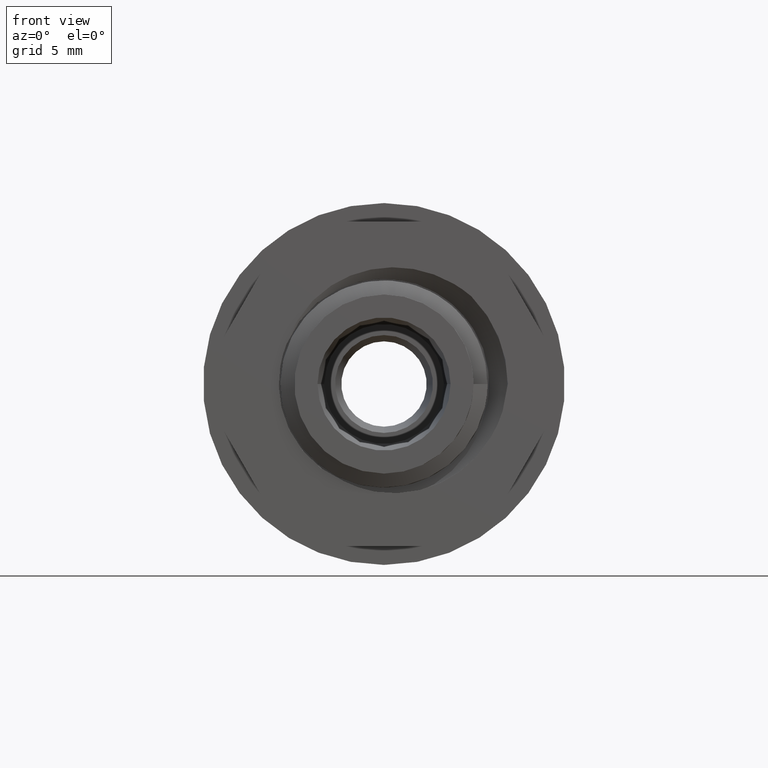
[diagram: clean part render]
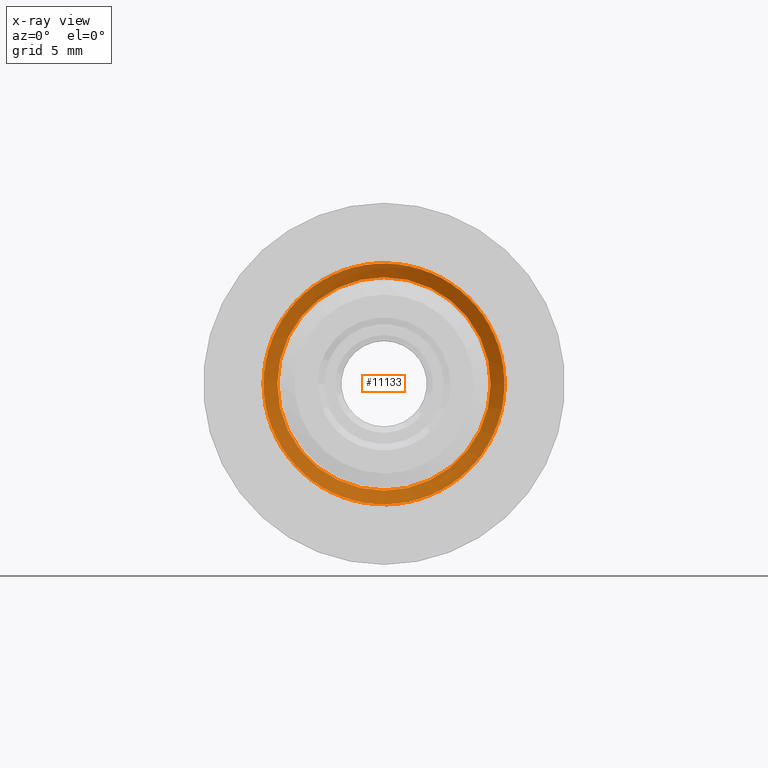
[diagram: x-ray — body ghosted, one internal face saturated and labeled with its STEP entity id]
A machine part, front view, then the same camera in x-ray: the body is ghosted and one INTERNAL B-rep face — a face not visible from any outside direction — is saturated and labeled: STEP entity #11133.
In plain terms, the highlighted face is a freeform B-spline surface patch.
Its self-contained STEP definition (entity closure, byte-faithful):
#928 =( BOUNDED_CURVE ( )  B_SPLINE_CURVE ( 2, ( #4069, #4071, #4102, #4090, #4085 ),
 .UNSPECIFIED., .F., .T. ) 
 B_SPLINE_CURVE_WITH_KNOTS ( ( 3, 2, 3 ),
 ( 0.2054665194121085800, 0.2103523222817962600, 0.2117462345406031800 ),
 .UNSPECIFIED. ) 
 CURVE ( )  GEOMETRIC_REPRESENTATION_ITEM ( )  RATIONAL_B_SPLINE_CURVE ( ( 0.9999999999999926700, 0.9238795325112940700, 1.000000000000000000, 0.9782829443576357400, 0.9689575757695707600 ) ) 
 REPRESENTATION_ITEM ( '' )  );
#1036 = CARTESIAN_POINT ( 'NONE',  ( 5.200334842912268900E-012, 9.720906259383316000, -6.250000000000000000 ) ) ;
#1040 = CARTESIAN_POINT ( 'NONE',  ( 2.588834764831757800, 9.064656259383506100, 6.250000000000071900 ) ) ;
#1049 = CARTESIAN_POINT ( 'NONE',  ( 6.249999999999985800, 9.252156259383507800, 2.588834764831843500 ) ) ;
#1051 = CARTESIAN_POINT ( 'NONE',  ( -2.039346997220663400E-013, 8.970906259383493600, 6.250000000000000000 ) ) ;
#1058 = CARTESIAN_POINT ( 'NONE',  ( 6.249999999999989300, 9.345906259383507800, 8.001089661568162100E-029 ) ) ;
#1062 = CARTESIAN_POINT ( 'NONE',  ( 2.588834764838638500, 9.627156259383156100, -6.249999999993188600 ) ) ;
#1067 = CARTESIAN_POINT ( 'NONE',  ( 4.419417382415916000, 9.533406259383513200, -4.419417382415915100 ) ) ;
#1072 = CARTESIAN_POINT ( 'NONE',  ( 6.249999999999991100, 9.439656259383513200, -2.588834764831839500 ) ) ;
#1078 = CARTESIAN_POINT ( 'NONE',  ( 4.419417382415912400, 9.158406259383509600, 4.419417382415915100 ) ) ;
#1194 = CARTESIAN_POINT ( 'NONE',  ( -2.268773534408079100E-012, 8.220906259383580700, -6.250000000000000000 ) ) ;
#1196 = CARTESIAN_POINT ( 'NONE',  ( 4.419417382415917700, 7.658406259383500700, 4.419417382415920400 ) ) ;
#1203 = CARTESIAN_POINT ( 'NONE',  ( 4.419417382415921300, 8.033406259383498900, -4.419417382415920400 ) ) ;
#1212 = CARTESIAN_POINT ( 'NONE',  ( 6.249999999999999100, 7.939656259383504300, -2.588834764831843500 ) ) ;
#1219 = CARTESIAN_POINT ( 'NONE',  ( 2.588834764828706400, 8.127156259383664100, -6.250000000003134400 ) ) ;
#1220 = CARTESIAN_POINT ( 'NONE',  ( -2.039346997220669200E-013, 7.470906259383491800, 6.250000000000000000 ) ) ;
#1226 = CARTESIAN_POINT ( 'NONE',  ( 2.588834764831724500, 7.564656259383494500, 6.250000000000118100 ) ) ;
#1231 = CARTESIAN_POINT ( 'NONE',  ( 6.249999999999995600, 7.752156259383502500, 2.588834764831847900 ) ) ;
#1234 = CARTESIAN_POINT ( 'NONE',  ( 6.249999999999996400, 7.845906259383500700, 2.051629617084606400E-029 ) ) ;
#1586 = CARTESIAN_POINT ( 'NONE',  ( 2.588834764841420300, 11.12715625938301200, -6.249999999990424500 ) ) ;
#1592 = CARTESIAN_POINT ( 'NONE',  ( 6.249999999999998200, 10.84590625938350100, -3.577640449167950300E-030 ) ) ;
#1596 = CARTESIAN_POINT ( 'NONE',  ( 2.588834764831762700, 10.56465625938349500, 6.250000000000085300 ) ) ;
#1608 = CARTESIAN_POINT ( 'NONE',  ( 4.419417382415924900, 11.03340625938350100, -4.419417382415924000 ) ) ;
#1620 = CARTESIAN_POINT ( 'NONE',  ( -2.039346997220663400E-013, 10.47090625938349400, 6.250000000000000000 ) ) ;
#1621 = CARTESIAN_POINT ( 'NONE',  ( 4.419417382415921300, 10.65840625938350100, 4.419417382415924000 ) ) ;
#1622 = CARTESIAN_POINT ( 'NONE',  ( 6.250000000000003600, 10.93965625938351500, -2.588834764831844400 ) ) ;
#1628 = CARTESIAN_POINT ( 'NONE',  ( 6.249999999999998200, 10.75215625938350100, 2.588834764831848800 ) ) ;
#1629 = CARTESIAN_POINT ( 'NONE',  ( 7.494600214785096700E-012, 11.22090625938323200, -6.250000000000000900 ) ) ;
#1633 = CARTESIAN_POINT ( 'NONE',  ( -4.078693994441313600E-013, 11.97090625938348800, 6.250000000000000900 ) ) ;
#1637 = CARTESIAN_POINT ( 'NONE',  ( 7.494600214785096700E-012, 11.22090625938323200, -6.250000000000000900 ) ) ;
#1642 = CARTESIAN_POINT ( 'NONE',  ( -4.419417382415916900, 11.40840625938350600, -4.419417382415919500 ) ) ;
#1652 = CARTESIAN_POINT ( 'NONE',  ( -2.588834764832014900, 11.87715625938350300, 6.249999999999825000 ) ) ;
#1654 = CARTESIAN_POINT ( 'NONE',  ( -6.249999999999996400, 11.59590625938350600, -7.589415207398852500E-016 ) ) ;
#1662 = CARTESIAN_POINT ( 'NONE',  ( -6.249999999999998200, 11.68965625938350800, 2.588834764831842200 ) ) ;
#1666 = CARTESIAN_POINT ( 'NONE',  ( -6.249999999999997300, 11.50215625938350400, -2.588834764831843500 ) ) ;
#1673 = CARTESIAN_POINT ( 'NONE',  ( -4.419417382415920400, 11.78340625938350400, 4.419417382415918600 ) ) ;
#1676 = CARTESIAN_POINT ( 'NONE',  ( -2.588834764822264500, 11.31465625938301800, -6.250000000009573700 ) ) ;
#1730 = CARTESIAN_POINT ( 'NONE',  ( -2.588834764834971700, 8.314656259383671300, -6.249999999996845200 ) ) ;
#1731 = CARTESIAN_POINT ( 'NONE',  ( -2.039346997220663400E-013, 8.970906259383493600, 6.250000000000000000 ) ) ;
#1732 = CARTESIAN_POINT ( 'NONE',  ( -6.249999999999982200, 8.502156259383511400, -2.588834764831837700 ) ) ;
#1737 = CARTESIAN_POINT ( 'NONE',  ( -2.588834764831931000, 5.877156259383500700, 6.249999999999907600 ) ) ;
#1738 = CARTESIAN_POINT ( 'NONE',  ( -2.071211794052238900E-013, 5.970906259383496300, 6.249999999999999100 ) ) ;
#1742 = CARTESIAN_POINT ( 'NONE',  ( -6.249999999999995600, 5.595906259383506900, -7.589415207398902800E-016 ) ) ;
#1744 = CARTESIAN_POINT ( 'NONE',  ( -4.419417382415911500, 8.783406259383511400, 4.419417382415909800 ) ) ;
#1747 = CARTESIAN_POINT ( 'NONE',  ( -2.588834764831841300, 5.314656259383507800, -6.249999999999995600 ) ) ;
#1748 = CARTESIAN_POINT ( 'NONE',  ( -6.249999999999996400, 5.502156259383504300, -2.588834764831843500 ) ) ;
#1749 = CARTESIAN_POINT ( 'NONE',  ( -6.249999999999997300, 5.689656259383505200, 2.588834764831842200 ) ) ;
#1750 = CARTESIAN_POINT ( 'NONE',  ( -4.419417382415920400, 5.783406259383506900, 4.419417382415918600 ) ) ;
#1753 = CARTESIAN_POINT ( 'NONE',  ( -6.249999999999984000, 8.689656259383514900, 2.588834764831835900 ) ) ;
#1757 = CARTESIAN_POINT ( 'NONE',  ( -4.419417382415916900, 5.408406259383503400, -4.419417382415919500 ) ) ;
#1760 = CARTESIAN_POINT ( 'NONE',  ( -2.268773534408079100E-012, 8.220906259383580700, -6.250000000000000000 ) ) ;
#1762 = CARTESIAN_POINT ( 'NONE',  ( -2.588834764831923900, 8.877156259383502500, 6.249999999999894300 ) ) ;
#1768 = CARTESIAN_POINT ( 'NONE',  ( 0.0000000000000000000, 5.220906259383499800, -6.250000000000000000 ) ) ;
#1769 = CARTESIAN_POINT ( 'NONE',  ( -4.419417382415908000, 8.408406259383511400, -4.419417382415910600 ) ) ;
#1770 = CARTESIAN_POINT ( 'NONE',  ( -6.249999999999983100, 8.595906259383509600, -7.589415207399814900E-016 ) ) ;
#1791 = CARTESIAN_POINT ( 'NONE',  ( -2.588834764831931000, 10.37715625938349500, 6.249999999999911200 ) ) ;
#1794 = CARTESIAN_POINT ( 'NONE',  ( -2.039346997220663400E-013, 10.47090625938349400, 6.250000000000000000 ) ) ;
#1795 = CARTESIAN_POINT ( 'NONE',  ( 5.200334842912268900E-012, 9.720906259383316000, -6.250000000000000000 ) ) ;
#1797 = CARTESIAN_POINT ( 'NONE',  ( -6.249999999999998200, 10.09590625938350400, -7.589415207398686800E-016 ) ) ;
#1805 = CARTESIAN_POINT ( 'NONE',  ( -2.588834764825041800, 9.814656259383156100, -6.250000000006799900 ) ) ;
#1807 = CARTESIAN_POINT ( 'NONE',  ( -4.419417382415919500, 9.908406259383506100, -4.419417382415922200 ) ) ;
#1809 = CARTESIAN_POINT ( 'NONE',  ( -6.249999999999999100, 10.00215625938350600, -2.588834764831844400 ) ) ;
#1810 = CARTESIAN_POINT ( 'NONE',  ( -6.249999999999999100, 10.18965625938350800, 2.588834764831842600 ) ) ;
#1820 = CARTESIAN_POINT ( 'NONE',  ( -4.419417382415923100, 10.28340625938350300, 4.419417382415921300 ) ) ;
#1830 = CARTESIAN_POINT ( 'NONE',  ( -6.249999999999992900, 7.002156259383508700, -2.588834764831839900 ) ) ;
#1831 = CARTESIAN_POINT ( 'NONE',  ( -6.249999999999992900, 7.189656259383514000, 2.588834764831839100 ) ) ;
#1833 = CARTESIAN_POINT ( 'NONE',  ( -2.039346997220669200E-013, 7.470906259383491800, 6.250000000000000000 ) ) ;
#1836 = CARTESIAN_POINT ( 'NONE',  ( 2.588834764831677800, 12.06465625938348800, 6.250000000000170500 ) ) ;
#1837 = CARTESIAN_POINT ( 'NONE',  ( 0.0000000000000000000, 12.72090625938350300, -6.250000000000000000 ) ) ;
#1840 = CARTESIAN_POINT ( 'NONE',  ( -4.078693994441313600E-013, 11.97090625938348800, 6.250000000000000900 ) ) ;
#1842 = CARTESIAN_POINT ( 'NONE',  ( 4.419417382415920400, 12.15840625938350300, 4.419417382415923100 ) ) ;
#1843 = CARTESIAN_POINT ( 'NONE',  ( 4.419417382415924000, 12.53340625938350300, -4.419417382415923100 ) ) ;
#1853 = CARTESIAN_POINT ( 'NONE',  ( 2.039346997220665600E-013, 6.720906259383495400, -6.250000000000000000 ) ) ;
#1855 = CARTESIAN_POINT ( 'NONE',  ( -2.588834764831753800, 6.814656259383502500, -6.250000000000073700 ) ) ;
#1856 = CARTESIAN_POINT ( 'NONE',  ( -4.419417382415912400, 6.908406259383509600, -4.419417382415915100 ) ) ;
#1857 = CARTESIAN_POINT ( 'NONE',  ( -6.249999999999990200, 7.095906259383506100, -7.589415207399304100E-016 ) ) ;
#1859 = CARTESIAN_POINT ( 'NONE',  ( -4.419417382415916000, 7.283406259383506100, 4.419417382415914200 ) ) ;
#1861 = CARTESIAN_POINT ( 'NONE',  ( 2.588834764831653400, 12.62715625938351500, -6.250000000000191000 ) ) ;
#1864 = CARTESIAN_POINT ( 'NONE',  ( 6.249999999999998200, 12.34590625938350300, 1.519685245150161100E-031 ) ) ;
#1865 = CARTESIAN_POINT ( 'NONE',  ( 6.250000000000002700, 12.43965625938350400, -2.588834764831844400 ) ) ;
#1867 = CARTESIAN_POINT ( 'NONE',  ( 6.249999999999997300, 12.25215625938350300, 2.588834764831848800 ) ) ;
#1874 = CARTESIAN_POINT ( 'NONE',  ( -2.588834764831964300, 7.377156259383500700, 6.249999999999865000 ) ) ;
#1963 = CARTESIAN_POINT ( 'NONE',  ( -5.682500616517812000, 13.04174682665988700, 3.280760192043133700 ) ) ;
#1965 = LINE ( 'NONE', #1963, #14403 ) ;
#1966 = DIRECTION ( 'NONE',  ( 0.7499952473992795900, 0.4999999998924246100, -0.4330209336580260200 ) ) ;
#2007 = EDGE_CURVE ( 'NONE', #13220, #13258, #13266, .T. ) ;
#2008 = EDGE_CURVE ( 'NONE', #13276, #13290, #13250, .T. ) ;
#2032 = EDGE_CURVE ( 'NONE', #13294, #13238, #13263, .T. ) ;
#2063 = EDGE_CURVE ( 'NONE', #13224, #13222, #13282, .T. ) ;
#2138 = EDGE_CURVE ( 'NONE', #13295, #13237, #10514, .T. ) ;
#2147 = EDGE_CURVE ( 'NONE', #13237, #13285, #10517, .T. ) ;
#2171 = EDGE_CURVE ( 'NONE', #13290, #13220, #10532, .T. ) ;
#2172 = EDGE_CURVE ( 'NONE', #13222, #13294, #10520, .T. ) ;
#2182 = EDGE_CURVE ( 'NONE', #13238, #13295, #10533, .T. ) ;
#2189 = EDGE_CURVE ( 'NONE', #13285, #13239, #10519, .T. ) ;
#2194 = EDGE_CURVE ( 'NONE', #13258, #13224, #10521, .T. ) ;
#2215 = B_SPLINE_CURVE_WITH_KNOTS ( 'NONE', 3,
 ( #3720, #3722, #3723, #3724, #3709, #3711, #3687, #3727, #3716, #3689, #3728, #3677 ),
 .UNSPECIFIED., .F., .F.,
 ( 4, 2, 2, 2, 2, 4 ),
 ( 0.0000000000000000000, 0.001203813265696453100, 0.001805719898544679800, 0.002407626531392906200, 0.003611439797089358600, 0.004815253062785811500 ),
 .UNSPECIFIED. ) ;
#3677 = CARTESIAN_POINT ( 'NONE',  ( -5.284985249711781700, 12.96061003367421300, -3.336379910972318900 ) ) ;
#3687 = CARTESIAN_POINT ( 'NONE',  ( -6.354631198057776800, 12.96061003367371500, -0.9620954703134716500 ) ) ;
#3689 = CARTESIAN_POINT ( 'NONE',  ( -5.731850425442020800, 12.96061003367371400, -2.656077467688431800 ) ) ;
#3709 = CARTESIAN_POINT ( 'NONE',  ( -6.455171808692055500, 12.96061003367371000, -0.3625445398157492400 ) ) ;
#3711 = CARTESIAN_POINT ( 'NONE',  ( -6.394751025825204500, 12.96061003367371200, -0.7623669620637740800 ) ) ;
#3716 = CARTESIAN_POINT ( 'NONE',  ( -6.072925735840733800, 12.96061003367371200, -1.926238426998933400 ) ) ;
#3720 = CARTESIAN_POINT ( 'NONE',  ( -6.442678379541736600, 12.96061003367371700, 1.243421602690204300 ) ) ;
#3722 = CARTESIAN_POINT ( 'NONE',  ( -6.494264381660744200, 12.96061003367371000, 0.8406570984284647000 ) ) ;
#3723 = CARTESIAN_POINT ( 'NONE',  ( -6.508454420357352000, 12.96061003367373800, 0.4388748747778484200 ) ) ;
#3724 = CARTESIAN_POINT ( 'NONE',  ( -6.475568090088874100, 12.96061003367374000, -0.1623755416015100800 ) ) ;
#3727 = CARTESIAN_POINT ( 'NONE',  ( -6.207317250759866800, 12.96061003367371400, -1.548362716900744300 ) ) ;
#3728 = CARTESIAN_POINT ( 'NONE',  ( -5.524323565078542100, 12.96061003367371000, -3.008066375483244000 ) ) ;
#4069 = CARTESIAN_POINT ( 'NONE',  ( 0.0000000000000000000, 12.72090625938350300, -6.250000000000000000 ) ) ;
#4071 = CARTESIAN_POINT ( 'NONE',  ( -2.588834764832031300, 12.81465625938351300, -6.249999999999805500 ) ) ;
#4085 = CARTESIAN_POINT ( 'NONE',  ( -5.284985249711781700, 12.96061003367421300, -3.336379910972318900 ) ) ;
#4090 = CARTESIAN_POINT ( 'NONE',  ( -4.912636265488877100, 12.93366557838060000, -3.926198499342959700 ) ) ;
#4102 = CARTESIAN_POINT ( 'NONE',  ( -4.419417382415916900, 12.90840625938350600, -4.419417382415919500 ) ) ;
#4124 = LINE ( 'NONE', #4125, #14117 ) ;
#4125 = CARTESIAN_POINT ( 'NONE',  ( 6.249999999999998200, 4.845906259383496300, 1.580390441035096100E-017 ) ) ;
#4174 = DIRECTION ( 'NONE',  ( 0.8660254037844432600, -0.4999999999999919000, -6.047423072554948700E-015 ) ) ;
#4557 =( BOUNDED_CURVE ( )  B_SPLINE_CURVE ( 2, ( #4945, #4981, #4946 ),
 .UNSPECIFIED., .F., .T. ) 
 B_SPLINE_CURVE_WITH_KNOTS ( ( 3, 3 ),
 ( 1.582651051211390100E-009, 0.002176055566604019900 ),
 .UNSPECIFIED. ) 
 CURVE ( )  GEOMETRIC_REPRESENTATION_ITEM ( )  RATIONAL_B_SPLINE_CURVE ( ( 0.9660719928506584800, 0.9555488040545265800, 0.9718241220422732000 ) ) 
 REPRESENTATION_ITEM ( '' )  );
#4562 =( BOUNDED_CURVE ( )  B_SPLINE_CURVE ( 2, ( #4708, #4685, #4709, #4712, #4731, #4722, #4720, #4725, #4726, #4680, #4723, #4682, #4694, #4732, #4690, #4683, #4681, #4733, #4734, #4686, #4688, #4778, #4757, #4793, #4800, #4779, #4764, #4761, #4759, #4785, #4751, #4783, #4752, #4776, #4768, #4745, #4794, #4777, #4780, #4795, #4762, #4737, #4788, #4754, #4789, #4797, #4747, #4790, #4773, #4741, #4798, #4791, #4799, #4743, #4796, #4763, #4781, #4774, #4775, #4765, #4786, #4748, #4766, #4792, #4782, #4784, #4738, #4739, #4753, #4758, #4755, #4756, #4769, #4744, #4770, #4787, #4767, #4760, #4771, #4742, #4772, #4749, #4740, #4746, #4750, #4844, #4836, #4833, #4807, #4817, #4832 ),
 .UNSPECIFIED., .F., .T. ) 
 B_SPLINE_CURVE_WITH_KNOTS ( ( 3, 2, 2, 2, 2, 2, 2, 2, 2, 2, 2, 2, 2, 2, 2, 2, 2, 2, 2, 2, 2, 2, 2, 2, 2, 2, 2, 2, 2, 2, 2, 2, 2, 2, 2, 2, 2, 2, 2, 2, 2, 2, 2, 2, 2, 3 ),
 ( 0.0000000000000000000, 0.02083333333333333200, 0.04166666666666666400, 0.06250000000000000000, 0.08333333333333332900, 0.1041666666666666700, 0.1250000000000000000, 0.1458333333333333400, 0.1666666666666666600, 0.1875000000000000000, 0.2083333333333333400, 0.2291666666666666600, 0.2500000000000000000, 0.2708333333333333100, 0.2916666666666666900, 0.3124999999999999400, 0.3333333333333333100, 0.3541666666666666900, 0.3750000000000000000, 0.3958333333333333100, 0.4166666666666666900, 0.4375000000000000600, 0.4583333333333333100, 0.4791666666666666900, 0.5000000000000000000, 0.5208333333333333700, 0.5416666666666666300, 0.5625000000000000000, 0.5833333333333333700, 0.6041666666666666300, 0.6249999999999998900, 0.6458333333333333700, 0.6666666666666666300, 0.6875000000000000000, 0.7083333333333333700, 0.7291666666666666300, 0.7500000000000000000, 0.7708333333333333700, 0.7916666666666666300, 0.8125000000000000000, 0.8333333333333333700, 0.8541666666666666300, 0.8750000000000001100, 0.8958333333333333700, 0.9166666666666666300, 0.9305156350690979600 ),
 .UNSPECIFIED. ) 
 CURVE ( )  GEOMETRIC_REPRESENTATION_ITEM ( )  RATIONAL_B_SPLINE_CURVE ( ( 1.000000000000000000, 0.9238795325112867400, 1.000000000000000000, 0.9238795325112867400, 1.000000000000000000, 0.9238795325112867400, 1.000000000000000000, 0.9238795325112867400, 1.000000000000000000, 0.9238795325112867400, 1.000000000000000000, 0.9238795325112867400, 1.000000000000000000, 0.9238795325112867400, 1.000000000000000000, 0.9238795325112867400, 1.000000000000000000, 0.9238795325112867400, 1.000000000000000000, 0.9238795325112867400, 1.000000000000000000, 0.9238795325112867400, 1.000000000000000000, 0.9238795325112867400, 1.000000000000000000, 0.9238795325112867400, 1.000000000000000000, 0.9238795325112867400, 1.000000000000000000, 0.9238795325112867400, 1.000000000000000000, 0.9238795325112867400, 1.000000000000000000, 0.9238795325112867400, 1.000000000000000000, 0.9238795325112867400, 1.000000000000000000, 0.9238795325112867400, 1.000000000000000000, 0.9238795325112867400, 1.000000000000000000, 0.9238795325112867400, 1.000000000000000000, 0.9238795325112867400, 1.000000000000000000, 0.9238795325112867400, 1.000000000000000000, 0.9238795325112867400, 1.000000000000000000, 0.9238795325112867400, 1.000000000000000000, 0.9238795325112867400, 1.000000000000000000, 0.9238795325112867400, 1.000000000000000000, 0.9238795325112867400, 1.000000000000000000, 0.9238795325112867400, 1.000000000000000000, 0.9238795325112867400, 1.000000000000000000, 0.9238795325112867400, 1.000000000000000000, 0.9238795325112867400, 1.000000000000000000, 0.9238795325112867400, 1.000000000000000000, 0.9238795325112867400, 1.000000000000000000, 0.9238795325112867400, 1.000000000000000000, 0.9238795325112867400, 1.000000000000000000, 0.9238795325112867400, 1.000000000000000000, 0.9238795325112867400, 1.000000000000000000, 0.9238795325112867400, 1.000000000000000000, 0.9238795325112867400, 1.000000000000000000, 0.9238795325112867400, 1.000000000000000000, 0.9238795325112867400, 1.000000000000000000, 0.9238795325112867400, 1.000000000000000000, 0.9238795325112867400, 1.000000000000000000, 0.9493988824465845500, 0.9660719995931653600 ) ) 
 REPRESENTATION_ITEM ( '' )  );
#4680 = CARTESIAN_POINT ( 'NONE',  ( -7.061898812499998200, 5.220906261431895100, 2.925134264243959500 ) ) ;
#4681 = CARTESIAN_POINT ( 'NONE',  ( 7.061898812500001700, 5.877156261431893300, -5.692061405548898300E-015 ) ) ;
#4682 = CARTESIAN_POINT ( 'NONE',  ( -2.925134264243954200, 5.408406261431892400, 7.061898812500000800 ) ) ;
#4683 = CARTESIAN_POINT ( 'NONE',  ( 7.061898812500001700, 5.783406261431901300, 2.925134264243953700 ) ) ;
#4685 = CARTESIAN_POINT ( 'NONE',  ( 7.061898812499998200, 4.470906261431891500, -2.925134264243961300 ) ) ;
#4686 = CARTESIAN_POINT ( 'NONE',  ( 2.925134264243951100, 6.158406261431896800, -7.061898812500002600 ) ) ;
#4688 = CARTESIAN_POINT ( 'NONE',  ( -6.938893903907228400E-015, 6.252156261431893300, -7.061898812500000000 ) ) ;
#4690 = CARTESIAN_POINT ( 'NONE',  ( 4.993516538371982200, 5.689656261431893300, 4.993516538371974200 ) ) ;
#4694 = CARTESIAN_POINT ( 'NONE',  ( 3.469446951953614200E-015, 5.502156261431893300, 7.061898812500000000 ) ) ;
#4708 = CARTESIAN_POINT ( 'NONE',  ( 7.061898812500001700, 4.377156261431891500, -5.682459854495417400E-015 ) ) ;
#4709 = CARTESIAN_POINT ( 'NONE',  ( 4.993516538371975100, 4.564656261431895100, -4.993516538371982200 ) ) ;
#4712 = CARTESIAN_POINT ( 'NONE',  ( 2.925134264243951100, 4.658406261431892400, -7.061898812500002600 ) ) ;
#4720 = CARTESIAN_POINT ( 'NONE',  ( -4.993516538371982200, 4.939656261431892400, -4.993516538371973300 ) ) ;
#4722 = CARTESIAN_POINT ( 'NONE',  ( -2.925134264243962200, 4.845906261431893300, -7.061898812499997300 ) ) ;
#4723 = CARTESIAN_POINT ( 'NONE',  ( -4.993516538371975100, 5.314656261431892400, 4.993516538371981300 ) ) ;
#4725 = CARTESIAN_POINT ( 'NONE',  ( -7.061898812500001700, 5.033406261431898600, -2.925134264243950200 ) ) ;
#4726 = CARTESIAN_POINT ( 'NONE',  ( -7.061898812500000000, 5.127156261431892400, 4.824699667560494700E-015 ) ) ;
#4731 = CARTESIAN_POINT ( 'NONE',  ( -6.938893903907228400E-015, 4.752156261431896000, -7.061898812500000000 ) ) ;
#4732 = CARTESIAN_POINT ( 'NONE',  ( 2.925134264243962200, 5.595906261431894200, 7.061898812499996400 ) ) ;
#4733 = CARTESIAN_POINT ( 'NONE',  ( 7.061898812499998200, 5.970906261431893300, -2.925134264243961300 ) ) ;
#4734 = CARTESIAN_POINT ( 'NONE',  ( 4.993516538371975100, 6.064656261431893300, -4.993516538371982200 ) ) ;
#4737 = CARTESIAN_POINT ( 'NONE',  ( -7.061898812499998200, 8.220906261431892400, 2.925134264243959500 ) ) ;
#4738 = CARTESIAN_POINT ( 'NONE',  ( 4.993516538371975100, 10.56465626143189400, -4.993516538371982200 ) ) ;
#4739 = CARTESIAN_POINT ( 'NONE',  ( 2.925134264243951100, 10.65840626143189400, -7.061898812500002600 ) ) ;
#4740 = CARTESIAN_POINT ( 'NONE',  ( 4.993516538371975100, 12.06465626143189800, -4.993516538371982200 ) ) ;
#4741 = CARTESIAN_POINT ( 'NONE',  ( 7.061898812499998200, 8.970906261431897700, -2.925134264243961300 ) ) ;
#4742 = CARTESIAN_POINT ( 'NONE',  ( 7.061898812500001700, 11.78340626143189600, 2.925134264243953700 ) ) ;
#4743 = CARTESIAN_POINT ( 'NONE',  ( -2.925134264243962200, 9.345906261431894200, -7.061898812499997300 ) ) ;
#4744 = CARTESIAN_POINT ( 'NONE',  ( -7.061898812499998200, 11.22090626143190000, 2.925134264243959500 ) ) ;
#4745 = CARTESIAN_POINT ( 'NONE',  ( 2.925134264243951100, 7.658406261431892400, -7.061898812500002600 ) ) ;
#4746 = CARTESIAN_POINT ( 'NONE',  ( 2.925134264243951100, 12.15840626143189600, -7.061898812500002600 ) ) ;
#4747 = CARTESIAN_POINT ( 'NONE',  ( 4.993516538371982200, 8.689656261431896000, 4.993516538371974200 ) ) ;
#4748 = CARTESIAN_POINT ( 'NONE',  ( 2.925134264243962200, 10.09590626143189400, 7.061898812499996400 ) ) ;
#4749 = CARTESIAN_POINT ( 'NONE',  ( 7.061898812499998200, 11.97090626143189800, -2.925134264243961300 ) ) ;
#4750 = CARTESIAN_POINT ( 'NONE',  ( -6.938893903907228400E-015, 12.25215626143189600, -7.061898812500000000 ) ) ;
#4751 = CARTESIAN_POINT ( 'NONE',  ( 4.993516538371982200, 7.189656261431890600, 4.993516538371974200 ) ) ;
#4752 = CARTESIAN_POINT ( 'NONE',  ( 7.061898812500001700, 7.377156261431890600, -5.692061405548898300E-015 ) ) ;
#4753 = CARTESIAN_POINT ( 'NONE',  ( -6.938893903907228400E-015, 10.75215626143189400, -7.061898812500000000 ) ) ;
#4754 = CARTESIAN_POINT ( 'NONE',  ( -2.925134264243954200, 8.408406261431892400, 7.061898812500000800 ) ) ;
#4755 = CARTESIAN_POINT ( 'NONE',  ( -4.993516538371982200, 10.93965626143189400, -4.993516538371973300 ) ) ;
#4756 = CARTESIAN_POINT ( 'NONE',  ( -7.061898812500001700, 11.03340626143189200, -2.925134264243950200 ) ) ;
#4757 = CARTESIAN_POINT ( 'NONE',  ( -4.993516538371982200, 6.439656261431893300, -4.993516538371973300 ) ) ;
#4758 = CARTESIAN_POINT ( 'NONE',  ( -2.925134264243962200, 10.84590626143190300, -7.061898812499997300 ) ) ;
#4759 = CARTESIAN_POINT ( 'NONE',  ( 3.469446951953614200E-015, 7.002156261431890600, 7.061898812500000000 ) ) ;
#4760 = CARTESIAN_POINT ( 'NONE',  ( 2.925134264243962200, 11.59590626143189100, 7.061898812499996400 ) ) ;
#4761 = CARTESIAN_POINT ( 'NONE',  ( -2.925134264243954200, 6.908406261431895100, 7.061898812500000800 ) ) ;
#4762 = CARTESIAN_POINT ( 'NONE',  ( -7.061898812500000000, 8.127156261431892400, 4.824699667560494700E-015 ) ) ;
#4763 = CARTESIAN_POINT ( 'NONE',  ( -7.061898812500001700, 9.533406261431894200, -2.925134264243950200 ) ) ;
#4764 = CARTESIAN_POINT ( 'NONE',  ( -4.993516538371975100, 6.814656261431890600, 4.993516538371981300 ) ) ;
#4765 = CARTESIAN_POINT ( 'NONE',  ( -2.925134264243954200, 9.908406261431894200, 7.061898812500000800 ) ) ;
#4766 = CARTESIAN_POINT ( 'NONE',  ( 4.993516538371982200, 10.18965626143189400, 4.993516538371974200 ) ) ;
#4767 = CARTESIAN_POINT ( 'NONE',  ( 3.469446951953614200E-015, 11.50215626143189400, 7.061898812500000000 ) ) ;
#4768 = CARTESIAN_POINT ( 'NONE',  ( 4.993516538371975100, 7.564656261431892400, -4.993516538371982200 ) ) ;
#4769 = CARTESIAN_POINT ( 'NONE',  ( -7.061898812500000000, 11.12715626143189400, 4.824699667560494700E-015 ) ) ;
#4770 = CARTESIAN_POINT ( 'NONE',  ( -4.993516538371975100, 11.31465626143189400, 4.993516538371981300 ) ) ;
#4771 = CARTESIAN_POINT ( 'NONE',  ( 4.993516538371982200, 11.68965626143189400, 4.993516538371974200 ) ) ;
#4772 = CARTESIAN_POINT ( 'NONE',  ( 7.061898812500001700, 11.87715626143189400, -5.692061405548898300E-015 ) ) ;
#4773 = CARTESIAN_POINT ( 'NONE',  ( 7.061898812500001700, 8.877156261431896000, -5.692061405548898300E-015 ) ) ;
#4774 = CARTESIAN_POINT ( 'NONE',  ( -7.061898812499998200, 9.720906261431894200, 2.925134264243959500 ) ) ;
#4775 = CARTESIAN_POINT ( 'NONE',  ( -4.993516538371975100, 9.814656261431892400, 4.993516538371981300 ) ) ;
#4776 = CARTESIAN_POINT ( 'NONE',  ( 7.061898812499998200, 7.470906261431894200, -2.925134264243961300 ) ) ;
#4777 = CARTESIAN_POINT ( 'NONE',  ( -2.925134264243962200, 7.845906261431891500, -7.061898812499997300 ) ) ;
#4778 = CARTESIAN_POINT ( 'NONE',  ( -2.925134264243962200, 6.345906261431894200, -7.061898812499997300 ) ) ;
#4779 = CARTESIAN_POINT ( 'NONE',  ( -7.061898812499998200, 6.720906261431893300, 2.925134264243959500 ) ) ;
#4780 = CARTESIAN_POINT ( 'NONE',  ( -4.993516538371982200, 7.939656261431891500, -4.993516538371973300 ) ) ;
#4781 = CARTESIAN_POINT ( 'NONE',  ( -7.061898812500000000, 9.627156261431892400, 4.824699667560494700E-015 ) ) ;
#4782 = CARTESIAN_POINT ( 'NONE',  ( 7.061898812500001700, 10.37715626143189400, -5.692061405548898300E-015 ) ) ;
#4783 = CARTESIAN_POINT ( 'NONE',  ( 7.061898812500001700, 7.283406261431892400, 2.925134264243953700 ) ) ;
#4784 = CARTESIAN_POINT ( 'NONE',  ( 7.061898812499998200, 10.47090626143189600, -2.925134264243961300 ) ) ;
#4785 = CARTESIAN_POINT ( 'NONE',  ( 2.925134264243962200, 7.095906261431895100, 7.061898812499996400 ) ) ;
#4786 = CARTESIAN_POINT ( 'NONE',  ( 3.469446951953614200E-015, 10.00215626143189600, 7.061898812500000000 ) ) ;
#4787 = CARTESIAN_POINT ( 'NONE',  ( -2.925134264243954200, 11.40840626143189200, 7.061898812500000800 ) ) ;
#4788 = CARTESIAN_POINT ( 'NONE',  ( -4.993516538371975100, 8.314656261431892400, 4.993516538371981300 ) ) ;
#4789 = CARTESIAN_POINT ( 'NONE',  ( 3.469446951953614200E-015, 8.502156261431896000, 7.061898812500000000 ) ) ;
#4790 = CARTESIAN_POINT ( 'NONE',  ( 7.061898812500001700, 8.783406261431894200, 2.925134264243953700 ) ) ;
#4791 = CARTESIAN_POINT ( 'NONE',  ( 2.925134264243951100, 9.158406261431892400, -7.061898812500002600 ) ) ;
#4792 = CARTESIAN_POINT ( 'NONE',  ( 7.061898812500001700, 10.28340626143189800, 2.925134264243953700 ) ) ;
#4793 = CARTESIAN_POINT ( 'NONE',  ( -7.061898812500001700, 6.533406261431900400, -2.925134264243950200 ) ) ;
#4794 = CARTESIAN_POINT ( 'NONE',  ( -6.938893903907228400E-015, 7.752156261431891500, -7.061898812500000000 ) ) ;
#4795 = CARTESIAN_POINT ( 'NONE',  ( -7.061898812500001700, 8.033406261431896000, -2.925134264243950200 ) ) ;
#4796 = CARTESIAN_POINT ( 'NONE',  ( -4.993516538371982200, 9.439656261431892400, -4.993516538371973300 ) ) ;
#4797 = CARTESIAN_POINT ( 'NONE',  ( 2.925134264243962200, 8.595906261431892400, 7.061898812499996400 ) ) ;
#4798 = CARTESIAN_POINT ( 'NONE',  ( 4.993516538371975100, 9.064656261431892400, -4.993516538371982200 ) ) ;
#4799 = CARTESIAN_POINT ( 'NONE',  ( -6.938893903907228400E-015, 9.252156261431892400, -7.061898812500000000 ) ) ;
#4800 = CARTESIAN_POINT ( 'NONE',  ( -7.061898812500000000, 6.627156261431890600, 4.824699667560494700E-015 ) ) ;
#4807 = CARTESIAN_POINT ( 'NONE',  ( -7.061898812500000000, 12.62715626143190000, 4.824699667560494700E-015 ) ) ;
#4817 = CARTESIAN_POINT ( 'NONE',  ( -7.061898812500000000, 12.68780148032232300, 1.892217682549212300 ) ) ;
#4832 = CARTESIAN_POINT ( 'NONE',  ( -6.115795259048358200, 12.75288200899110100, 3.530929311523712600 ) ) ;
#4833 = CARTESIAN_POINT ( 'NONE',  ( -7.061898812500001700, 12.53340626143189400, -2.925134264243950200 ) ) ;
#4836 = CARTESIAN_POINT ( 'NONE',  ( -4.993516538371982200, 12.43965626143190000, -4.993516538371973300 ) ) ;
#4844 = CARTESIAN_POINT ( 'NONE',  ( -2.925134264243962200, 12.34590626143189200, -7.061898812499997300 ) ) ;
#4945 = CARTESIAN_POINT ( 'NONE',  ( -5.682499658090225800, 13.04174670625810100, 3.280762048686393800 ) ) ;
#4946 = CARTESIAN_POINT ( 'NONE',  ( -6.442678379541736600, 12.96061003367371700, 1.243421602690204300 ) ) ;
#4981 = CARTESIAN_POINT ( 'NONE',  ( -6.233751281373447000, 13.00093579083935100, 2.325958768969551600 ) ) ;
#5543 = FACE_OUTER_BOUND ( 'NONE', #13003, .T. ) ;
#5568 = CARTESIAN_POINT ( 'NONE',  ( 6.249999999999998200, 4.845906259383499800, 0.0000000000000000000 ) ) ;
#5573 = CARTESIAN_POINT ( 'NONE',  ( 6.250000000000003600, 4.939656259383503400, -2.588834764831844400 ) ) ;
#5576 = CARTESIAN_POINT ( 'NONE',  ( 4.419417382415924000, 5.033406259383499800, -4.419417382415923100 ) ) ;
#5581 = CARTESIAN_POINT ( 'NONE',  ( 2.588834764831843000, 5.127156259383498900, -6.250000000000000000 ) ) ;
#5586 = CARTESIAN_POINT ( 'NONE',  ( 0.0000000000000000000, 5.220906259383499800, -6.250000000000000000 ) ) ;
#5587 = CARTESIAN_POINT ( 'NONE',  ( -2.588834764831843000, 5.314656259383504300, -6.250000000000000000 ) ) ;
#5588 = CARTESIAN_POINT ( 'NONE',  ( -4.419417382415920400, 5.408406259383499800, -4.419417382415923100 ) ) ;
#5589 = CARTESIAN_POINT ( 'NONE',  ( -6.250000000000003600, 5.502156259383501600, -2.588834764831845300 ) ) ;
#5590 = CARTESIAN_POINT ( 'NONE',  ( -6.250000000000000000, 5.595906259383503400, -7.589415207398531000E-016 ) ) ;
#5591 = CARTESIAN_POINT ( 'NONE',  ( 4.419417382415924000, 8.033406259383498900, -4.419417382415923100 ) ) ;
#5592 = CARTESIAN_POINT ( 'NONE',  ( -6.250000000000003600, 8.689656259383506100, 2.588834764831843500 ) ) ;
#5593 = CARTESIAN_POINT ( 'NONE',  ( 0.0000000000000000000, 8.220906259383498900, -6.250000000000000000 ) ) ;
#5594 = CARTESIAN_POINT ( 'NONE',  ( -6.250000000000000000, 8.595906259383498900, -7.589415207398531000E-016 ) ) ;
#5595 = CARTESIAN_POINT ( 'NONE',  ( 0.0000000000000000000, 10.47090625938350100, 6.250000000000000000 ) ) ;
#5596 = CARTESIAN_POINT ( 'NONE',  ( 6.249999999999998200, 9.345906259383500700, 0.0000000000000000000 ) ) ;
#5597 = CARTESIAN_POINT ( 'NONE',  ( 6.249999999999998200, 10.84590625938350100, 0.0000000000000000000 ) ) ;
#5598 = CARTESIAN_POINT ( 'NONE',  ( 2.588834764831843000, 11.12715625938350300, -6.250000000000000000 ) ) ;
#5599 = CARTESIAN_POINT ( 'NONE',  ( 6.249999999999997300, 6.252156259383506100, 2.588834764831848800 ) ) ;
#5600 = CARTESIAN_POINT ( 'NONE',  ( -4.419417382415924000, 8.783406259383498900, 4.419417382415922200 ) ) ;
#5601 = CARTESIAN_POINT ( 'NONE',  ( -2.588834764831847900, 5.877156259383500700, 6.249999999999998200 ) ) ;
#5602 = CARTESIAN_POINT ( 'NONE',  ( -6.250000000000003600, 8.502156259383500700, -2.588834764831845300 ) ) ;
#5603 = CARTESIAN_POINT ( 'NONE',  ( -6.250000000000003600, 7.189656259383507800, 2.588834764831843500 ) ) ;
#5604 = CARTESIAN_POINT ( 'NONE',  ( -2.588834764831843000, 8.314656259383498900, -6.250000000000000000 ) ) ;
#5605 = CARTESIAN_POINT ( 'NONE',  ( 6.250000000000003600, 9.439656259383504300, -2.588834764831844400 ) ) ;
#5606 = CARTESIAN_POINT ( 'NONE',  ( 2.588834764831843000, 9.627156259383498900, -6.250000000000000000 ) ) ;
#5607 = CARTESIAN_POINT ( 'NONE',  ( -6.250000000000000000, 7.095906259383498100, -7.589415207398531000E-016 ) ) ;
#5608 = CARTESIAN_POINT ( 'NONE',  ( -6.250000000000003600, 5.689656259383502500, 2.588834764831843500 ) ) ;
#5609 = CARTESIAN_POINT ( 'NONE',  ( 4.419417382415924000, 6.533406259383500700, -4.419417382415923100 ) ) ;
#5610 = CARTESIAN_POINT ( 'NONE',  ( 2.588834764831843000, 8.127156259383502500, -6.250000000000000000 ) ) ;
#5611 = CARTESIAN_POINT ( 'NONE',  ( -2.588834764831847900, 7.377156259383502500, 6.249999999999998200 ) ) ;
#5612 = CARTESIAN_POINT ( 'NONE',  ( -2.588834764831843000, 6.814656259383502500, -6.250000000000000000 ) ) ;
#5613 = CARTESIAN_POINT ( 'NONE',  ( 4.419417382415924000, 9.533406259383504300, -4.419417382415923100 ) ) ;
#5614 = CARTESIAN_POINT ( 'NONE',  ( 6.249999999999998200, 6.345906259383500700, 0.0000000000000000000 ) ) ;
#5615 = CARTESIAN_POINT ( 'NONE',  ( -2.588834764831847900, 10.37715625938350300, 6.249999999999998200 ) ) ;
#5616 = CARTESIAN_POINT ( 'NONE',  ( 4.419417382415920400, 10.65840625938350100, 4.419417382415923100 ) ) ;
#5617 = CARTESIAN_POINT ( 'NONE',  ( 6.249999999999997300, 10.75215625938350300, 2.588834764831848800 ) ) ;
#5618 = CARTESIAN_POINT ( 'NONE',  ( 6.249999999999997300, 7.752156259383501600, 2.588834764831848800 ) ) ;
#5619 = CARTESIAN_POINT ( 'NONE',  ( -2.588834764831847900, 8.877156259383498900, 6.249999999999998200 ) ) ;
#5620 = CARTESIAN_POINT ( 'NONE',  ( -6.250000000000003600, 10.18965625938350600, 2.588834764831843500 ) ) ;
#5621 = CARTESIAN_POINT ( 'NONE',  ( -4.419417382415920400, 6.908406259383501600, -4.419417382415923100 ) ) ;
#5622 = CARTESIAN_POINT ( 'NONE',  ( 2.588834764831847900, 9.064656259383504300, 6.249999999999999100 ) ) ;
#5623 = CARTESIAN_POINT ( 'NONE',  ( -4.419417382415924000, 10.28340625938350100, 4.419417382415922200 ) ) ;
#5624 = CARTESIAN_POINT ( 'NONE',  ( -4.419417382415924000, 5.783406259383505200, 4.419417382415922200 ) ) ;
#5625 = CARTESIAN_POINT ( 'NONE',  ( 4.419417382415924000, 11.03340625938350100, -4.419417382415923100 ) ) ;
#5626 = CARTESIAN_POINT ( 'NONE',  ( 0.0000000000000000000, 6.720906259383502500, -6.250000000000000000 ) ) ;
#5627 = CARTESIAN_POINT ( 'NONE',  ( 0.0000000000000000000, 11.22090625938350400, -6.250000000000000000 ) ) ;
#5628 = CARTESIAN_POINT ( 'NONE',  ( -4.419417382415920400, 11.40840625938350300, -4.419417382415923100 ) ) ;
#5629 = CARTESIAN_POINT ( 'NONE',  ( -6.250000000000003600, 11.50215625938350300, -2.588834764831845300 ) ) ;
#5630 = CARTESIAN_POINT ( 'NONE',  ( 6.250000000000003600, 10.93965625938351500, -2.588834764831844400 ) ) ;
#5631 = CARTESIAN_POINT ( 'NONE',  ( -6.250000000000000000, 11.59590625938350300, -7.589415207398531000E-016 ) ) ;
#5632 = CARTESIAN_POINT ( 'NONE',  ( -4.419417382415924000, 7.283406259383498100, 4.419417382415922200 ) ) ;
#5633 = CARTESIAN_POINT ( 'NONE',  ( 4.419417382415920400, 7.658406259383499800, 4.419417382415923100 ) ) ;
#5634 = CARTESIAN_POINT ( 'NONE',  ( 4.419417382415920400, 9.158406259383502500, 4.419417382415923100 ) ) ;
#5635 = CARTESIAN_POINT ( 'NONE',  ( 0.0000000000000000000, 8.970906259383498900, 6.250000000000000000 ) ) ;
#5636 = CARTESIAN_POINT ( 'NONE',  ( 6.250000000000003600, 6.439656259383503400, -2.588834764831844400 ) ) ;
#5637 = CARTESIAN_POINT ( 'NONE',  ( 4.419417382415920400, 6.158406259383500700, 4.419417382415923100 ) ) ;
#5638 = CARTESIAN_POINT ( 'NONE',  ( -6.250000000000003600, 7.002156259383502500, -2.588834764831845300 ) ) ;
#5639 = CARTESIAN_POINT ( 'NONE',  ( 2.588834764831847900, 10.56465625938350100, 6.249999999999999100 ) ) ;
#5640 = CARTESIAN_POINT ( 'NONE',  ( -2.588834764831843000, 11.31465625938350400, -6.250000000000000000 ) ) ;
#5641 = CARTESIAN_POINT ( 'NONE',  ( -4.419417382415920400, 8.408406259383498900, -4.419417382415923100 ) ) ;
#5642 = CARTESIAN_POINT ( 'NONE',  ( 2.588834764831847900, 6.064656259383500700, 6.249999999999999100 ) ) ;
#5643 = CARTESIAN_POINT ( 'NONE',  ( 6.249999999999998200, 7.845906259383498900, 0.0000000000000000000 ) ) ;
#5644 = CARTESIAN_POINT ( 'NONE',  ( 6.250000000000003600, 7.939656259383504300, -2.588834764831844400 ) ) ;
#5645 = CARTESIAN_POINT ( 'NONE',  ( 6.249999999999997300, 9.252156259383500700, 2.588834764831848800 ) ) ;
#5646 = CARTESIAN_POINT ( 'NONE',  ( -2.588834764831843000, 9.814656259383500700, -6.250000000000000000 ) ) ;
#5647 = CARTESIAN_POINT ( 'NONE',  ( 0.0000000000000000000, 7.470906259383498100, 6.250000000000000000 ) ) ;
#5648 = CARTESIAN_POINT ( 'NONE',  ( -4.419417382415920400, 9.908406259383504300, -4.419417382415923100 ) ) ;
#5649 = CARTESIAN_POINT ( 'NONE',  ( -6.250000000000003600, 10.00215625938350600, -2.588834764831845300 ) ) ;
#5650 = CARTESIAN_POINT ( 'NONE',  ( -6.250000000000000000, 10.09590625938350100, -7.589415207398531000E-016 ) ) ;
#5651 = CARTESIAN_POINT ( 'NONE',  ( 2.588834764831843000, 6.627156259383500700, -6.250000000000000000 ) ) ;
#5652 = CARTESIAN_POINT ( 'NONE',  ( 0.0000000000000000000, 9.720906259383504300, -6.250000000000000000 ) ) ;
#5653 = CARTESIAN_POINT ( 'NONE',  ( 0.0000000000000000000, 5.970906259383504300, 6.250000000000000000 ) ) ;
#5654 = CARTESIAN_POINT ( 'NONE',  ( 2.588834764831847900, 7.564656259383498900, 6.249999999999999100 ) ) ;
#5655 = CARTESIAN_POINT ( 'NONE',  ( -7.061898812500000000, 5.127156261431892400, 4.824699667560494700E-015 ) ) ;
#5656 = CARTESIAN_POINT ( 'NONE',  ( -6.938893903907228400E-015, 6.252156261431893300, -7.061898812500000000 ) ) ;
#5657 = CARTESIAN_POINT ( 'NONE',  ( -4.993516538371982200, 6.439656261431893300, -4.993516538371973300 ) ) ;
#5658 = CARTESIAN_POINT ( 'NONE',  ( -2.925134264243954200, 8.408406261431892400, 7.061898812500000800 ) ) ;
#5659 = CARTESIAN_POINT ( 'NONE',  ( -2.588834764831847900, 11.87715625938350600, 6.249999999999998200 ) ) ;
#5660 = CARTESIAN_POINT ( 'NONE',  ( -7.061898812500001700, 5.033406261431898600, -2.925134264243950200 ) ) ;
#5661 = CARTESIAN_POINT ( 'NONE',  ( 6.249999999999997300, 12.25215625938350400, 2.588834764831848800 ) ) ;
#5662 = CARTESIAN_POINT ( 'NONE',  ( -6.250000000000005300, 13.15655146535809500, 1.674671120505842900 ) ) ;
#5663 = CARTESIAN_POINT ( 'NONE',  ( -4.993516538371975100, 6.814656261431890600, 4.993516538371981300 ) ) ;
#5664 = CARTESIAN_POINT ( 'NONE',  ( -6.938893903907228400E-015, 7.752156261431891500, -7.061898812500000000 ) ) ;
#5665 = CARTESIAN_POINT ( 'NONE',  ( 2.925134264243951100, 4.658406261431892400, -7.061898812500002600 ) ) ;
#5666 = CARTESIAN_POINT ( 'NONE',  ( -4.859774481902291200, 13.26460479514418500, 4.082631166617454200 ) ) ;
#5667 = CARTESIAN_POINT ( 'NONE',  ( -4.993516538371975100, 5.314656261431892400, 4.993516538371981300 ) ) ;
#5668 = CARTESIAN_POINT ( 'NONE',  ( -6.938893903907228400E-015, 4.752156261431896000, -7.061898812500000000 ) ) ;
#5669 = CARTESIAN_POINT ( 'NONE',  ( -7.061898812499998200, 5.220906261431895100, 2.925134264243959500 ) ) ;
#5670 = CARTESIAN_POINT ( 'NONE',  ( 3.469446951953614200E-015, 5.502156261431893300, 7.061898812500000000 ) ) ;
#5671 = CARTESIAN_POINT ( 'NONE',  ( 7.061898812500001700, 4.377156261431891500, -5.692061405548898300E-015 ) ) ;
#5672 = CARTESIAN_POINT ( 'NONE',  ( 2.925134264243961700, 5.595906261431894200, 7.061898812499996400 ) ) ;
#5673 = CARTESIAN_POINT ( 'NONE',  ( 2.925134264243951100, 6.158406261431896800, -7.061898812500002600 ) ) ;
#5674 = CARTESIAN_POINT ( 'NONE',  ( -7.061898812499998200, 6.720906261431893300, 2.925134264243959500 ) ) ;
#5675 = CARTESIAN_POINT ( 'NONE',  ( 2.925134264243961700, 7.095906261431895100, 7.061898812499996400 ) ) ;
#5676 = CARTESIAN_POINT ( 'NONE',  ( 7.061898812500001700, 7.283406261431892400, 2.925134264243953700 ) ) ;
#5677 = CARTESIAN_POINT ( 'NONE',  ( 7.061898812500001700, 5.877156261431893300, -5.692061405548898300E-015 ) ) ;
#5678 = CARTESIAN_POINT ( 'NONE',  ( 7.061898812499998200, 5.970906261431893300, -2.925134264243961300 ) ) ;
#5679 = CARTESIAN_POINT ( 'NONE',  ( 7.061898812500001700, 5.783406261431901300, 2.925134264243953700 ) ) ;
#5680 = CARTESIAN_POINT ( 'NONE',  ( 6.250000000000003600, 12.43965625938350400, -2.588834764831844400 ) ) ;
#5681 = CARTESIAN_POINT ( 'NONE',  ( -5.412669346702527300, 13.22163181674206300, 3.124981686869034500 ) ) ;
#5682 = CARTESIAN_POINT ( 'NONE',  ( 4.993516538371975100, 6.064656261431893300, -4.993516538371982200 ) ) ;
#5683 = CARTESIAN_POINT ( 'NONE',  ( -2.588834764831843000, 12.81465625938350400, -6.250000000000000000 ) ) ;
#5684 = CARTESIAN_POINT ( 'NONE',  ( 7.061898812499998200, 4.470906261431890600, -2.925134264243961300 ) ) ;
#5685 = CARTESIAN_POINT ( 'NONE',  ( -2.925134264243954200, 6.908406261431895100, 7.061898812500000800 ) ) ;
#5686 = CARTESIAN_POINT ( 'NONE',  ( 2.925134264243951100, 7.658406261431891500, -7.061898812500002600 ) ) ;
#5687 = CARTESIAN_POINT ( 'NONE',  ( -4.306879617102056000, 13.30757777354630800, 5.040280646365872900 ) ) ;
#5688 = CARTESIAN_POINT ( 'NONE',  ( 4.993516538371982200, 5.689656261431893300, 4.993516538371974200 ) ) ;
#5689 = CARTESIAN_POINT ( 'NONE',  ( -7.061898812500000000, 6.627156261431890600, 4.824699667560494700E-015 ) ) ;
#5690 = CARTESIAN_POINT ( 'NONE',  ( -2.925134264243961700, 7.845906261431892400, -7.061898812499997300 ) ) ;
#5691 = CARTESIAN_POINT ( 'NONE',  ( -4.419417382415924000, 11.78340625938350300, 4.419417382415922200 ) ) ;
#5692 = CARTESIAN_POINT ( 'NONE',  ( 2.588834764831843000, 12.62715625938350300, -6.250000000000000000 ) ) ;
#5693 = CARTESIAN_POINT ( 'NONE',  ( 0.0000000000000000000, 12.72090625938350300, -6.250000000000000000 ) ) ;
#5694 = CARTESIAN_POINT ( 'NONE',  ( -6.250000000000003600, 13.00215625938350400, -2.588834764831845300 ) ) ;
#5695 = CARTESIAN_POINT ( 'NONE',  ( 4.993516538371975100, 4.564656261431895100, -4.993516538371982200 ) ) ;
#5696 = CARTESIAN_POINT ( 'NONE',  ( -4.993516538371982200, 4.939656261431892400, -4.993516538371973300 ) ) ;
#5697 = CARTESIAN_POINT ( 'NONE',  ( 7.061898812500001700, 7.377156261431890600, -5.692061405548898300E-015 ) ) ;
#5698 = CARTESIAN_POINT ( 'NONE',  ( 4.419417382415924000, 12.53340625938350300, -4.419417382415923100 ) ) ;
#5699 = CARTESIAN_POINT ( 'NONE',  ( -4.993516538371982200, 7.939656261431891500, -4.993516538371973300 ) ) ;
#5700 = CARTESIAN_POINT ( 'NONE',  ( -2.925134264243961700, 6.345906261431894200, -7.061898812499997300 ) ) ;
#5701 = CARTESIAN_POINT ( 'NONE',  ( -6.250000000000000000, 13.09590625938350400, -7.589415207398531000E-016 ) ) ;
#5702 = CARTESIAN_POINT ( 'NONE',  ( 4.993516538371982200, 7.189656261431890600, 4.993516538371974200 ) ) ;
#5703 = CARTESIAN_POINT ( 'NONE',  ( -4.419417382415920400, 12.90840625938350300, -4.419417382415923100 ) ) ;
#5704 = CARTESIAN_POINT ( 'NONE',  ( -7.061898812500001700, 8.033406261431896000, -2.925134264243950200 ) ) ;
#5705 = CARTESIAN_POINT ( 'NONE',  ( -7.061898812500001700, 6.533406261431901300, -2.925134264243950200 ) ) ;
#5706 = CARTESIAN_POINT ( 'NONE',  ( -6.250000000000003600, 11.68965625938350300, 2.588834764831843500 ) ) ;
#5707 = CARTESIAN_POINT ( 'NONE',  ( -2.925134264243954200, 5.408406261431892400, 7.061898812500000800 ) ) ;
#5708 = CARTESIAN_POINT ( 'NONE',  ( 2.588834764831847900, 12.06465625938349900, 6.249999999999999100 ) ) ;
#5709 = CARTESIAN_POINT ( 'NONE',  ( -2.925134264243961700, 4.845906261431893300, -7.061898812499997300 ) ) ;
#5710 = CARTESIAN_POINT ( 'NONE',  ( 3.469446951953614200E-015, 7.002156261431890600, 7.061898812500000000 ) ) ;
#5711 = CARTESIAN_POINT ( 'NONE',  ( 7.061898812499998200, 7.470906261431893300, -2.925134264243961300 ) ) ;
#5712 = CARTESIAN_POINT ( 'NONE',  ( 6.249999999999998200, 12.34590625938350300, 0.0000000000000000000 ) ) ;
#5713 = CARTESIAN_POINT ( 'NONE',  ( 4.993516538371975100, 7.564656261431892400, -4.993516538371982200 ) ) ;
#5714 = CARTESIAN_POINT ( 'NONE',  ( -7.061898812499998200, 8.220906261431892400, 2.925134264243959500 ) ) ;
#5715 = CARTESIAN_POINT ( 'NONE',  ( 4.419417382415920400, 12.15840625938350300, 4.419417382415923100 ) ) ;
#5716 = CARTESIAN_POINT ( 'NONE',  ( 0.0000000000000000000, 11.97090625938350300, 6.250000000000000000 ) ) ;
#5717 = CARTESIAN_POINT ( 'NONE',  ( -7.061898812500000000, 8.127156261431892400, 4.824699667560494700E-015 ) ) ;
#5718 = CARTESIAN_POINT ( 'NONE',  ( -4.993516538371975100, 8.314656261431892400, 4.993516538371981300 ) ) ;
#5719 = CARTESIAN_POINT ( 'NONE',  ( -5.491077702842173600, 12.79585479719258200, 4.612980509985812100 ) ) ;
#5721 = CARTESIAN_POINT ( 'NONE',  ( -6.115795717109394400, 12.75288181879045600, 3.530928714173554400 ) ) ;
#5722 = CARTESIAN_POINT ( 'NONE',  ( -4.993516538371975100, 9.814656261431892400, 4.993516538371981300 ) ) ;
#5723 = CARTESIAN_POINT ( 'NONE',  ( 3.469446951953614200E-015, 11.50215626143189400, 7.061898812500000000 ) ) ;
#5724 = CARTESIAN_POINT ( 'NONE',  ( 4.993516538371975100, 10.56465626143189400, -4.993516538371982200 ) ) ;
#5725 = CARTESIAN_POINT ( 'NONE',  ( -2.925134264243961700, 9.345906261431896000, -7.061898812499997300 ) ) ;
#5727 = CARTESIAN_POINT ( 'NONE',  ( -4.993516538371982200, 12.43965626143190000, -4.993516538371973300 ) ) ;
#5728 = CARTESIAN_POINT ( 'NONE',  ( 7.061898812499998200, 8.970906261431899500, -2.925134264243961300 ) ) ;
#5729 = CARTESIAN_POINT ( 'NONE',  ( -6.938893903907228400E-015, 9.252156261431892400, -7.061898812500000000 ) ) ;
#5730 = CARTESIAN_POINT ( 'NONE',  ( 4.993516538371982200, 11.68965626143189400, 4.993516538371974200 ) ) ;
#5731 = CARTESIAN_POINT ( 'NONE',  ( -7.061898812500001700, 12.53340626143189200, -2.925134264243950200 ) ) ;
#5732 = CARTESIAN_POINT ( 'NONE',  ( -4.866359688574954500, 12.83882777559470500, 5.695032305798069000 ) ) ;
#5733 = CARTESIAN_POINT ( 'NONE',  ( 2.925134264243951100, 12.15840626143189600, -7.061898812500002600 ) ) ;
#5736 = CARTESIAN_POINT ( 'NONE',  ( -7.061898812500001700, 9.533406261431894200, -2.925134264243950200 ) ) ;
#5737 = CARTESIAN_POINT ( 'NONE',  ( 7.061898812500001700, 8.783406261431892400, 2.925134264243953700 ) ) ;
#5739 = CARTESIAN_POINT ( 'NONE',  ( 4.993516538371975100, 12.06465626143189800, -4.993516538371982200 ) ) ;
#5740 = CARTESIAN_POINT ( 'NONE',  ( 3.469446951953614200E-015, 10.00215626143189600, 7.061898812500000000 ) ) ;
#5741 = CARTESIAN_POINT ( 'NONE',  ( -7.061898812500000000, 9.627156261431892400, 4.824699667560494700E-015 ) ) ;
#5742 = CARTESIAN_POINT ( 'NONE',  ( 7.061898812500001700, 8.877156261431896000, -5.692061405548898300E-015 ) ) ;
#5743 = CARTESIAN_POINT ( 'NONE',  ( -6.938893903907228400E-015, 10.75215626143189400, -7.061898812500000000 ) ) ;
#5744 = CARTESIAN_POINT ( 'NONE',  ( 3.469446951953614200E-015, 8.502156261431896000, 7.061898812500000000 ) ) ;
#5745 = CARTESIAN_POINT ( 'NONE',  ( -7.061898812500000000, 11.12715626143189400, 4.824699667560494700E-015 ) ) ;
#5746 = CARTESIAN_POINT ( 'NONE',  ( -7.061898812499998200, 9.720906261431894200, 2.925134264243959500 ) ) ;
#5747 = CARTESIAN_POINT ( 'NONE',  ( -2.925134264243954200, 9.908406261431897700, 7.061898812500000800 ) ) ;
#5748 = CARTESIAN_POINT ( 'NONE',  ( 7.061898812500001700, 10.28340626143189800, 2.925134264243953700 ) ) ;
#5749 = CARTESIAN_POINT ( 'NONE',  ( 2.925134264243961700, 11.59590626143189100, 7.061898812499996400 ) ) ;
#5750 = CARTESIAN_POINT ( 'NONE',  ( 7.061898812500001700, 11.78340626143189600, 2.925134264243953700 ) ) ;
#5751 = CARTESIAN_POINT ( 'NONE',  ( -4.993516538371982200, 10.93965626143189400, -4.993516538371973300 ) ) ;
#5752 = CARTESIAN_POINT ( 'NONE',  ( 7.061898812500001700, 11.87715626143189400, -5.692061405548898300E-015 ) ) ;
#5753 = CARTESIAN_POINT ( 'NONE',  ( 2.925134264243961700, 8.595906261431892400, 7.061898812499996400 ) ) ;
#5754 = CARTESIAN_POINT ( 'NONE',  ( -7.061898812500001700, 11.03340626143189100, -2.925134264243950200 ) ) ;
#5755 = CARTESIAN_POINT ( 'NONE',  ( 2.925134264243951100, 9.158406261431892400, -7.061898812500002600 ) ) ;
#5756 = CARTESIAN_POINT ( 'NONE',  ( -4.993516538371975100, 11.31465626143189400, 4.993516538371981300 ) ) ;
#5757 = CARTESIAN_POINT ( 'NONE',  ( -6.938893903907228400E-015, 12.25215626143189600, -7.061898812500000000 ) ) ;
#5758 = CARTESIAN_POINT ( 'NONE',  ( -2.925134264243961700, 10.84590626143190300, -7.061898812499997300 ) ) ;
#5759 = CARTESIAN_POINT ( 'NONE',  ( -2.925134264243961700, 12.34590626143189200, -7.061898812499997300 ) ) ;
#5760 = CARTESIAN_POINT ( 'NONE',  ( -7.061898812499999100, 12.68780146740649100, 1.892217279556526000 ) ) ;
#5761 = CARTESIAN_POINT ( 'NONE',  ( 4.993516538371975100, 9.064656261431892400, -4.993516538371982200 ) ) ;
#5762 = CARTESIAN_POINT ( 'NONE',  ( 4.993516538371982200, 10.18965626143189400, 4.993516538371974200 ) ) ;
#5763 = CARTESIAN_POINT ( 'NONE',  ( -7.061898812499998200, 11.22090626143190100, 2.925134264243959500 ) ) ;
#5764 = CARTESIAN_POINT ( 'NONE',  ( -2.925134264243954200, 11.40840626143189200, 7.061898812500000800 ) ) ;
#5765 = CARTESIAN_POINT ( 'NONE',  ( 4.993516538371982200, 8.689656261431896000, 4.993516538371974200 ) ) ;
#5766 = CARTESIAN_POINT ( 'NONE',  ( -4.993516538371982200, 9.439656261431892400, -4.993516538371973300 ) ) ;
#5767 = CARTESIAN_POINT ( 'NONE',  ( 7.061898812500001700, 10.37715626143189400, -5.692061405548898300E-015 ) ) ;
#5768 = CARTESIAN_POINT ( 'NONE',  ( -7.061898812500000000, 12.62715626143190000, 4.824699667560494700E-015 ) ) ;
#5769 = CARTESIAN_POINT ( 'NONE',  ( 2.925134264243961700, 10.09590626143189400, 7.061898812499996400 ) ) ;
#5770 = CARTESIAN_POINT ( 'NONE',  ( 2.925134264243951100, 10.65840626143189200, -7.061898812500002600 ) ) ;
#5771 = CARTESIAN_POINT ( 'NONE',  ( 7.061898812499998200, 11.97090626143189800, -2.925134264243961300 ) ) ;
#5773 = CARTESIAN_POINT ( 'NONE',  ( 7.061898812499998200, 10.47090626143189600, -2.925134264243961300 ) ) ;
#5779 =( BOUNDED_SURFACE ( )  B_SPLINE_SURFACE ( 1, 2, ( 
 ( #5568, #5573, #5576, #5581, #5586, #5587, #5588, #5589, #5590, #5608, #5624, #5601, #5653, #5642, #5637, #5599, #5614, #5636, #5609, #5651, #5626, #5612, #5621, #5638, #5607, #5603, #5632, #5611, #5647, #5654, #5633, #5618, #5643, #5644, #5591, #5610, #5593, #5604, #5641, #5602, #5594, #5592, #5600, #5619, #5635, #5622, #5634, #5645, #5596, #5605, #5613, #5606, #5652, #5646, #5648, #5649, #5650, #5620, #5623, #5615, #5595, #5639, #5616, #5617, #5597, #5630, #5625, #5598, #5627, #5640, #5628, #5629, #5631, #5706, #5691, #5659, #5716, #5708, #5715, #5661, #5712, #5680, #5698, #5692, #5693, #5683, #5703, #5694, #5701, #5662, #5681, #5666, #5687 ),
 ( #5671, #5684, #5695, #5665, #5668, #5709, #5696, #5660, #5655, #5669, #5667, #5707, #5670, #5672, #5688, #5679, #5677, #5678, #5682, #5673, #5656, #5700, #5657, #5705, #5689, #5674, #5663, #5685, #5710, #5675, #5702, #5676, #5697, #5711, #5713, #5686, #5664, #5690, #5699, #5704, #5717, #5714, #5718, #5658, #5744, #5753, #5765, #5737, #5742, #5728, #5761, #5755, #5729, #5725, #5766, #5736, #5741, #5746, #5722, #5747, #5740, #5769, #5762, #5748, #5767, #5773, #5724, #5770, #5743, #5758, #5751, #5754, #5745, #5763, #5756, #5764, #5723, #5749, #5730, #5750, #5752, #5771, #5739, #5733, #5757, #5759, #5727, #5731, #5768, #5760, #5721, #5719, #5732 ) ),
 .UNSPECIFIED., .F., .F., .F. ) 
 B_SPLINE_SURFACE_WITH_KNOTS ( ( 2, 2 ),
 ( 3, 2, 2, 2, 2, 2, 2, 2, 2, 2, 2, 2, 2, 2, 2, 2, 2, 2, 2, 2, 2, 2, 2, 2, 2, 2, 2, 2, 2, 2, 2, 2, 2, 2, 2, 2, 2, 2, 2, 2, 2, 2, 2, 2, 2, 2, 3 ),
 ( 0.0000000000000000000, 1.000000000000000000 ),
 ( 0.0000000000000000000, 0.02083333333333333200, 0.04166666666666666400, 0.06250000000000000000, 0.08333333333333332900, 0.1041666666666666700, 0.1250000000000000000, 0.1458333333333333400, 0.1666666666666666600, 0.1875000000000000000, 0.2083333333333333400, 0.2291666666666666600, 0.2500000000000000000, 0.2708333333333333100, 0.2916666666666666900, 0.3125000000000000000, 0.3333333333333333100, 0.3541666666666666900, 0.3750000000000000000, 0.3958333333333333100, 0.4166666666666666900, 0.4375000000000000000, 0.4583333333333333100, 0.4791666666666666900, 0.5000000000000000000, 0.5208333333333333700, 0.5416666666666666300, 0.5625000000000000000, 0.5833333333333333700, 0.6041666666666666300, 0.6250000000000000000, 0.6458333333333333700, 0.6666666666666666300, 0.6875000000000000000, 0.7083333333333333700, 0.7291666666666666300, 0.7500000000000000000, 0.7708333333333333700, 0.7916666666666666300, 0.8125000000000000000, 0.8333333333333333700, 0.8541666666666666300, 0.8750000000000000000, 0.8958333333333333700, 0.9166666666666666300, 0.9305156322688775700, 0.9398207885915663700 ),
 .UNSPECIFIED. ) 
 GEOMETRIC_REPRESENTATION_ITEM ( )  RATIONAL_B_SPLINE_SURFACE ( (
 ( 1.000000000000000000, 0.9238795325112867400, 1.000000000000000000, 0.9238795325112867400, 1.000000000000000000, 0.9238795325112867400, 1.000000000000000000, 0.9238795325112867400, 1.000000000000000000, 0.9238795325112867400, 1.000000000000000000, 0.9238795325112867400, 1.000000000000000000, 0.9238795325112867400, 1.000000000000000000, 0.9238795325112867400, 1.000000000000000000, 0.9238795325112867400, 1.000000000000000000, 0.9238795325112867400, 1.000000000000000000, 0.9238795325112867400, 1.000000000000000000, 0.9238795325112867400, 1.000000000000000000, 0.9238795325112867400, 1.000000000000000000, 0.9238795325112867400, 1.000000000000000000, 0.9238795325112867400, 1.000000000000000000, 0.9238795325112867400, 1.000000000000000000, 0.9238795325112867400, 1.000000000000000000, 0.9238795325112867400, 1.000000000000000000, 0.9238795325112867400, 1.000000000000000000, 0.9238795325112867400, 1.000000000000000000, 0.9238795325112867400, 1.000000000000000000, 0.9238795325112867400, 1.000000000000000000, 0.9238795325112867400, 1.000000000000000000, 0.9238795325112867400, 1.000000000000000000, 0.9238795325112867400, 1.000000000000000000, 0.9238795325112867400, 1.000000000000000000, 0.9238795325112867400, 1.000000000000000000, 0.9238795325112867400, 1.000000000000000000, 0.9238795325112867400, 1.000000000000000000, 0.9238795325112867400, 1.000000000000000000, 0.9238795325112867400, 1.000000000000000000, 0.9238795325112867400, 1.000000000000000000, 0.9238795325112867400, 1.000000000000000000, 0.9238795325112867400, 1.000000000000000000, 0.9238795325112867400, 1.000000000000000000, 0.9238795325112867400, 1.000000000000000000, 0.9238795325112867400, 1.000000000000000000, 0.9238795325112867400, 1.000000000000000000, 0.9238795325112867400, 1.000000000000000000, 0.9238795325112867400, 1.000000000000000000, 0.9238795325112867400, 1.000000000000000000, 0.9238795325112867400, 1.000000000000000000, 0.9238795325112867400, 1.000000000000000000, 0.9238795325112867400, 1.000000000000000000, 0.9493988926779806100, 0.9660719928506584800, 0.9660719928506584800, 0.9660719928506584800),
 ( 1.000000000000000000, 0.9238795325112867400, 1.000000000000000000, 0.9238795325112867400, 1.000000000000000000, 0.9238795325112867400, 1.000000000000000000, 0.9238795325112867400, 1.000000000000000000, 0.9238795325112867400, 1.000000000000000000, 0.9238795325112867400, 1.000000000000000000, 0.9238795325112867400, 1.000000000000000000, 0.9238795325112867400, 1.000000000000000000, 0.9238795325112867400, 1.000000000000000000, 0.9238795325112867400, 1.000000000000000000, 0.9238795325112867400, 1.000000000000000000, 0.9238795325112867400, 1.000000000000000000, 0.9238795325112867400, 1.000000000000000000, 0.9238795325112867400, 1.000000000000000000, 0.9238795325112867400, 1.000000000000000000, 0.9238795325112867400, 1.000000000000000000, 0.9238795325112867400, 1.000000000000000000, 0.9238795325112867400, 1.000000000000000000, 0.9238795325112867400, 1.000000000000000000, 0.9238795325112867400, 1.000000000000000000, 0.9238795325112867400, 1.000000000000000000, 0.9238795325112867400, 1.000000000000000000, 0.9238795325112867400, 1.000000000000000000, 0.9238795325112867400, 1.000000000000000000, 0.9238795325112867400, 1.000000000000000000, 0.9238795325112867400, 1.000000000000000000, 0.9238795325112867400, 1.000000000000000000, 0.9238795325112867400, 1.000000000000000000, 0.9238795325112867400, 1.000000000000000000, 0.9238795325112867400, 1.000000000000000000, 0.9238795325112867400, 1.000000000000000000, 0.9238795325112867400, 1.000000000000000000, 0.9238795325112867400, 1.000000000000000000, 0.9238795325112867400, 1.000000000000000000, 0.9238795325112867400, 1.000000000000000000, 0.9238795325112867400, 1.000000000000000000, 0.9238795325112867400, 1.000000000000000000, 0.9238795325112867400, 1.000000000000000000, 0.9238795325112867400, 1.000000000000000000, 0.9238795325112867400, 1.000000000000000000, 0.9238795325112867400, 1.000000000000000000, 0.9238795325112867400, 1.000000000000000000, 0.9238795325112867400, 1.000000000000000000, 0.9238795325112867400, 1.000000000000000000, 0.9493988926779806100, 0.9660719928506584800, 0.9660719928506584800, 0.9660719928506584800) ) ) 
 REPRESENTATION_ITEM ( '' )  SURFACE ( )  );
#10133 = CARTESIAN_POINT ( 'NONE',  ( -6.442678379541736600, 12.96061003367371700, 1.243421602690204300 ) ) ;
#10181 = CARTESIAN_POINT ( 'NONE',  ( 7.061898812500001700, 4.377156261431891500, -5.682459854495417400E-015 ) ) ;
#10185 = CARTESIAN_POINT ( 'NONE',  ( -5.682499658090225800, 13.04174670625810100, 3.280762048686393800 ) ) ;
#10190 = CARTESIAN_POINT ( 'NONE',  ( -6.115795259048358200, 12.75288200899110100, 3.530929311523712600 ) ) ;
#10227 = CARTESIAN_POINT ( 'NONE',  ( -5.284985249711781700, 12.96061003367421300, -3.336379910972318900 ) ) ;
#10330 = CARTESIAN_POINT ( 'NONE',  ( -2.071211794052238900E-013, 5.970906259383496300, 6.249999999999999100 ) ) ;
#10331 = CARTESIAN_POINT ( 'NONE',  ( -2.268773534408079100E-012, 8.220906259383580700, -6.250000000000000000 ) ) ;
#10334 = CARTESIAN_POINT ( 'NONE',  ( -2.039346997220669200E-013, 7.470906259383491800, 6.250000000000000000 ) ) ;
#10364 = CARTESIAN_POINT ( 'NONE',  ( 0.0000000000000000000, 5.220906259383499800, -6.250000000000000000 ) ) ;
#10365 = CARTESIAN_POINT ( 'NONE',  ( -2.039346997220663400E-013, 8.970906259383493600, 6.250000000000000000 ) ) ;
#10372 = CARTESIAN_POINT ( 'NONE',  ( -2.039346997220663400E-013, 10.47090625938349400, 6.250000000000000000 ) ) ;
#10376 = CARTESIAN_POINT ( 'NONE',  ( 5.200334842912268900E-012, 9.720906259383316000, -6.250000000000000000 ) ) ;
#10398 = CARTESIAN_POINT ( 'NONE',  ( 2.039346997220665600E-013, 6.720906259383495400, -6.250000000000000000 ) ) ;
#10402 = CARTESIAN_POINT ( 'NONE',  ( 6.249999999999998200, 4.845906259383498100, 7.901952205170665500E-018 ) ) ;
#10406 = CARTESIAN_POINT ( 'NONE',  ( 7.494600214785096700E-012, 11.22090625938323200, -6.250000000000000900 ) ) ;
#10425 = CARTESIAN_POINT ( 'NONE',  ( -4.078693994441313600E-013, 11.97090625938348800, 6.250000000000000900 ) ) ;
#10426 = CARTESIAN_POINT ( 'NONE',  ( 0.0000000000000000000, 12.72090625938350300, -6.250000000000000000 ) ) ;
#10514 =( BOUNDED_CURVE ( )  B_SPLINE_CURVE ( 2, ( #1620, #1596, #1621, #1628, #1592, #1622, #1608, #1586, #1629 ),
 .UNSPECIFIED., .F., .T. ) 
 B_SPLINE_CURVE_WITH_KNOTS ( ( 3, 2, 2, 2, 3 ),
 ( 0.1467600653008960500, 0.1516522633927120700, 0.1565444614845280800, 0.1614366595763441200, 0.1663288576681601300 ),
 .UNSPECIFIED. ) 
 CURVE ( )  GEOMETRIC_REPRESENTATION_ITEM ( )  RATIONAL_B_SPLINE_CURVE ( ( 1.000000000000003300, 0.9238795325112834100, 1.000000000000000000, 0.9238795325112866300, 1.000000000000000000, 0.9238795325112866300, 1.000000000000000000, 0.9238795325116545600, 0.9999999999996320700 ) ) 
 REPRESENTATION_ITEM ( '' )  );
#10517 =( BOUNDED_CURVE ( )  B_SPLINE_CURVE ( 2, ( #1637, #1676, #1642, #1666, #1654, #1662, #1673, #1652, #1633 ),
 .UNSPECIFIED., .F., .T. ) 
 B_SPLINE_CURVE_WITH_KNOTS ( ( 3, 2, 2, 2, 3 ),
 ( 0.1663288576681601300, 0.1712210621774267700, 0.1761132666866934400, 0.1810054711959601100, 0.1858976757052267500 ),
 .UNSPECIFIED. ) 
 CURVE ( )  GEOMETRIC_REPRESENTATION_ITEM ( )  RATIONAL_B_SPLINE_CURVE ( ( 1.000000000000367900, 0.9238795325109188100, 1.000000000000000000, 0.9238795325112867400, 1.000000000000000000, 0.9238795325112867400, 1.000000000000000000, 0.9238795325112931800, 0.9999999999999935600 ) ) 
 REPRESENTATION_ITEM ( '' )  );
#10519 =( BOUNDED_CURVE ( )  B_SPLINE_CURVE ( 2, ( #1840, #1836, #1842, #1867, #1864, #1865, #1843, #1861, #1837 ),
 .UNSPECIFIED., .F., .T. ) 
 B_SPLINE_CURVE_WITH_KNOTS ( ( 3, 2, 2, 2, 3 ),
 ( 0.1858976757052267500, 0.1907898866319472100, 0.1956820975586676700, 0.2005743084853881300, 0.2054665194121085800 ),
 .UNSPECIFIED. ) 
 CURVE ( )  GEOMETRIC_REPRESENTATION_ITEM ( )  RATIONAL_B_SPLINE_CURVE ( ( 1.000000000000006400, 0.9238795325112803000, 1.000000000000000000, 0.9238795325112867400, 1.000000000000000000, 0.9238795325112867400, 1.000000000000000000, 0.9238795325112794100, 1.000000000000007300 ) ) 
 REPRESENTATION_ITEM ( '' )  );
#10520 =( BOUNDED_CURVE ( )  B_SPLINE_CURVE ( 2, ( #1760, #1730, #1769, #1732, #1770, #1753, #1744, #1762, #1731 ),
 .UNSPECIFIED., .F., .F. ) 
 B_SPLINE_CURVE_WITH_KNOTS ( ( 3, 2, 2, 2, 3 ),
 ( 0.08805384221747748800, 0.09294602105700401600, 0.09783819989653055900, 0.1027303787360570900, 0.1076225575755836200 ),
 .UNSPECIFIED. ) 
 CURVE ( )  GEOMETRIC_REPRESENTATION_ITEM ( )  RATIONAL_B_SPLINE_CURVE ( ( 0.9999999999998794300, 0.9238795325114070900, 0.9999999999999998900, 0.9238795325112866300, 0.9999999999999998900, 0.9238795325112866300, 0.9999999999999998900, 0.9238795325112898500, 0.9999999999999966700 ) ) 
 REPRESENTATION_ITEM ( '' )  );
#10521 =( BOUNDED_CURVE ( )  B_SPLINE_CURVE ( 2, ( #1853, #1855, #1856, #1830, #1857, #1831, #1859, #1874, #1833 ),
 .UNSPECIFIED., .F., .T. ) 
 B_SPLINE_CURVE_WITH_KNOTS ( ( 3, 2, 2, 2, 3 ),
 ( 0.04891648851018510400, 0.05380865451489383300, 0.05870082051960257700, 0.06359298652431130700, 0.06848515252902005700 ),
 .UNSPECIFIED. ) 
 CURVE ( )  GEOMETRIC_REPRESENTATION_ITEM ( )  RATIONAL_B_SPLINE_CURVE ( ( 1.000000000000003100, 0.9238795325112835200, 0.9999999999999998900, 0.9238795325112867400, 0.9999999999999998900, 0.9238795325112867400, 0.9999999999999998900, 0.9238795325112914000, 0.9999999999999952300 ) ) 
 REPRESENTATION_ITEM ( '' )  );
#10532 =( BOUNDED_CURVE ( )  B_SPLINE_CURVE ( 2, ( #1768, #1747, #1757, #1748, #1742, #1749, #1750, #1737, #1738 ),
 .UNSPECIFIED., .F., .F. ) 
 B_SPLINE_CURVE_WITH_KNOTS ( ( 3, 2, 2, 2, 3 ),
 ( 0.009779237481240396100, 0.01467139065116438100, 0.01956354382108836300, 0.02445569699101234800, 0.02934785016093633500 ),
 .UNSPECIFIED. ) 
 CURVE ( )  GEOMETRIC_REPRESENTATION_ITEM ( )  RATIONAL_B_SPLINE_CURVE ( ( 1.000000000000000000, 0.9238795325112867400, 1.000000000000000000, 0.9238795325112867400, 1.000000000000000000, 0.9238795325112867400, 1.000000000000000000, 0.9238795325112900700, 0.9999999999999966700 ) ) 
 REPRESENTATION_ITEM ( '' )  );
#10533 =( BOUNDED_CURVE ( )  B_SPLINE_CURVE ( 2, ( #1795, #1805, #1807, #1809, #1797, #1810, #1820, #1791, #1794 ),
 .UNSPECIFIED., .F., .F. ) 
 B_SPLINE_CURVE_WITH_KNOTS ( ( 3, 2, 2, 2, 3 ),
 ( 0.1271912986033745300, 0.1320834902777549000, 0.1369756819521353000, 0.1418678736265156500, 0.1467600653008960500 ),
 .UNSPECIFIED. ) 
 CURVE ( )  GEOMETRIC_REPRESENTATION_ITEM ( )  RATIONAL_B_SPLINE_CURVE ( ( 1.000000000000261300, 0.9238795325110256100, 1.000000000000000000, 0.9238795325112868500, 1.000000000000000000, 0.9238795325112868500, 1.000000000000000000, 0.9238795325112900700, 0.9999999999999967800 ) ) 
 REPRESENTATION_ITEM ( '' )  );
#10546 = EDGE_CURVE ( 'NONE', #12716, #12719, #1965, .T. ) ;
#10858 = EDGE_CURVE ( 'NONE', #12692, #12787, #2215, .T. ) ;
#10904 = EDGE_CURVE ( 'NONE', #13239, #12787, #928, .T. ) ;
#10910 = EDGE_CURVE ( 'NONE', #13276, #12735, #4124, .T. ) ;
#10986 = EDGE_CURVE ( 'NONE', #12735, #12716, #4562, .T. ) ;
#11027 = EDGE_CURVE ( 'NONE', #12719, #12692, #4557, .T. ) ;
#11133 = ADVANCED_FACE ( 'NONE', ( #5543 ), #5779, .F. ) ;
#11613 = ORIENTED_EDGE ( 'NONE', *, *, #10904, .T. ) ;
#11616 = ORIENTED_EDGE ( 'NONE', *, *, #10858, .F. ) ;
#11620 = ORIENTED_EDGE ( 'NONE', *, *, #2138, .T. ) ;
#11623 = ORIENTED_EDGE ( 'NONE', *, *, #2032, .T. ) ;
#11624 = ORIENTED_EDGE ( 'NONE', *, *, #10986, .F. ) ;
#11632 = ORIENTED_EDGE ( 'NONE', *, *, #2008, .T. ) ;
#11644 = ORIENTED_EDGE ( 'NONE', *, *, #2147, .T. ) ;
#11647 = ORIENTED_EDGE ( 'NONE', *, *, #2189, .T. ) ;
#11658 = ORIENTED_EDGE ( 'NONE', *, *, #2194, .T. ) ;
#11661 = ORIENTED_EDGE ( 'NONE', *, *, #2063, .T. ) ;
#11665 = ORIENTED_EDGE ( 'NONE', *, *, #2171, .T. ) ;
#11668 = ORIENTED_EDGE ( 'NONE', *, *, #2172, .T. ) ;
#11669 = ORIENTED_EDGE ( 'NONE', *, *, #10910, .F. ) ;
#11732 = ORIENTED_EDGE ( 'NONE', *, *, #2182, .T. ) ;
#12692 = VERTEX_POINT ( 'NONE', #10133 ) ;
#12716 = VERTEX_POINT ( 'NONE', #10190 ) ;
#12719 = VERTEX_POINT ( 'NONE', #10185 ) ;
#12735 = VERTEX_POINT ( 'NONE', #10181 ) ;
#12787 = VERTEX_POINT ( 'NONE', #10227 ) ;
#13003 = EDGE_LOOP ( 'NONE', ( #14723, #14684, #11624, #11669, #11632, #11665, #14691, #11658, #11661, #11668, #11623, #11732, #11620, #11644, #11647, #11613, #11616 ) ) ;
#13220 = VERTEX_POINT ( 'NONE', #10330 ) ;
#13222 = VERTEX_POINT ( 'NONE', #10331 ) ;
#13224 = VERTEX_POINT ( 'NONE', #10334 ) ;
#13237 = VERTEX_POINT ( 'NONE', #10406 ) ;
#13238 = VERTEX_POINT ( 'NONE', #10376 ) ;
#13239 = VERTEX_POINT ( 'NONE', #10426 ) ;
#13250 =( BOUNDED_CURVE ( )  B_SPLINE_CURVE ( 2, ( #13585, #13561, #13567, #13568, #13569 ),
 .UNSPECIFIED., .F., .F. ) 
 B_SPLINE_CURVE_WITH_KNOTS ( ( 3, 2, 3 ),
 ( 2.108362582524411900E-019, 0.004889618740620198100, 0.009779237481240396100 ),
 .UNSPECIFIED. ) 
 CURVE ( )  GEOMETRIC_REPRESENTATION_ITEM ( )  RATIONAL_B_SPLINE_CURVE ( ( 1.000000000000000000, 0.9238795325112867400, 1.000000000000000000, 0.9238795325112867400, 1.000000000000000000 ) ) 
 REPRESENTATION_ITEM ( '' )  );
#13258 = VERTEX_POINT ( 'NONE', #10398 ) ;
#13263 =( BOUNDED_CURVE ( )  B_SPLINE_CURVE ( 2, ( #1051, #1040, #1078, #1049, #1058, #1072, #1067, #1062, #1036 ),
 .UNSPECIFIED., .F., .T. ) 
 B_SPLINE_CURVE_WITH_KNOTS ( ( 3, 2, 2, 2, 3 ),
 ( 0.1076225575755836200, 0.1125147428325313500, 0.1174069280894790800, 0.1222991133464268200, 0.1271912986033745300 ),
 .UNSPECIFIED. ) 
 CURVE ( )  GEOMETRIC_REPRESENTATION_ITEM ( )  RATIONAL_B_SPLINE_CURVE ( ( 1.000000000000003100, 0.9238795325112834100, 0.9999999999999998900, 0.9238795325112866300, 0.9999999999999998900, 0.9238795325112866300, 0.9999999999999998900, 0.9238795325115478600, 0.9999999999997386500 ) ) 
 REPRESENTATION_ITEM ( '' )  );
#13266 =( BOUNDED_CURVE ( )  B_SPLINE_CURVE ( 2, ( #13578, #13579, #13565, #13558, #13586, #13566, #13571, #13582, #13575 ),
 .UNSPECIFIED., .F., .T. ) 
 B_SPLINE_CURVE_WITH_KNOTS ( ( 3, 2, 2, 2, 3 ),
 ( 0.02934785016093633200, 0.03424000974824852700, 0.03913216933556071300, 0.04402432892287291100, 0.04891648851018510400 ),
 .UNSPECIFIED. ) 
 CURVE ( )  GEOMETRIC_REPRESENTATION_ITEM ( )  RATIONAL_B_SPLINE_CURVE ( ( 1.000000000000003300, 0.9238795325112834100, 1.000000000000000000, 0.9238795325112867400, 1.000000000000000000, 0.9238795325112867400, 1.000000000000000000, 0.9238795325112899600, 0.9999999999999967800 ) ) 
 REPRESENTATION_ITEM ( '' )  );
#13276 = VERTEX_POINT ( 'NONE', #10402 ) ;
#13282 =( BOUNDED_CURVE ( )  B_SPLINE_CURVE ( 2, ( #1220, #1226, #1196, #1231, #1234, #1212, #1203, #1219, #1194 ),
 .UNSPECIFIED., .F., .F. ) 
 B_SPLINE_CURVE_WITH_KNOTS ( ( 3, 2, 2, 2, 3 ),
 ( 0.06848515252902005700, 0.07337732495113441500, 0.07826949737324877300, 0.08316166979536313000, 0.08805384221747748800 ),
 .UNSPECIFIED. ) 
 CURVE ( )  GEOMETRIC_REPRESENTATION_ITEM ( )  RATIONAL_B_SPLINE_CURVE ( ( 1.000000000000004700, 0.9238795325112820800, 1.000000000000000000, 0.9238795325112867400, 1.000000000000000000, 0.9238795325112867400, 1.000000000000000000, 0.9238795325111662800, 1.000000000000120600 ) ) 
 REPRESENTATION_ITEM ( '' )  );
#13285 = VERTEX_POINT ( 'NONE', #10425 ) ;
#13290 = VERTEX_POINT ( 'NONE', #10364 ) ;
#13294 = VERTEX_POINT ( 'NONE', #10365 ) ;
#13295 = VERTEX_POINT ( 'NONE', #10372 ) ;
#13558 = CARTESIAN_POINT ( 'NONE',  ( 6.249999999999998200, 6.252156259383506100, 2.588834764831848800 ) ) ;
#13561 = CARTESIAN_POINT ( 'NONE',  ( 6.249999999999996400, 4.939656259383506900, -2.588834764831842200 ) ) ;
#13565 = CARTESIAN_POINT ( 'NONE',  ( 4.419417382415920400, 6.158406259383500700, 4.419417382415923100 ) ) ;
#13566 = CARTESIAN_POINT ( 'NONE',  ( 6.250000000000002700, 6.439656259383503400, -2.588834764831844400 ) ) ;
#13567 = CARTESIAN_POINT ( 'NONE',  ( 4.419417382415919500, 5.033406259383503400, -4.419417382415918600 ) ) ;
#13568 = CARTESIAN_POINT ( 'NONE',  ( 2.588834764831839900, 5.127156259383503400, -6.249999999999995600 ) ) ;
#13569 = CARTESIAN_POINT ( 'NONE',  ( 0.0000000000000000000, 5.220906259383499800, -6.250000000000000000 ) ) ;
#13571 = CARTESIAN_POINT ( 'NONE',  ( 4.419417382415924000, 6.533406259383499800, -4.419417382415923100 ) ) ;
#13575 = CARTESIAN_POINT ( 'NONE',  ( 2.039346997220665600E-013, 6.720906259383495400, -6.250000000000000000 ) ) ;
#13578 = CARTESIAN_POINT ( 'NONE',  ( -2.071211794052238900E-013, 5.970906259383496300, 6.249999999999999100 ) ) ;
#13579 = CARTESIAN_POINT ( 'NONE',  ( 2.588834764831762200, 6.064656259383496300, 6.250000000000085300 ) ) ;
#13582 = CARTESIAN_POINT ( 'NONE',  ( 2.588834764831927400, 6.627156259383496300, -6.249999999999917400 ) ) ;
#13585 = CARTESIAN_POINT ( 'NONE',  ( 6.249999999999998200, 4.845906259383498100, 7.901952205170665500E-018 ) ) ;
#13586 = CARTESIAN_POINT ( 'NONE',  ( 6.249999999999999100, 6.345906259383500700, -1.976097080626208700E-030 ) ) ;
#14117 = VECTOR ( 'NONE', #4174, 1000.000000000000200 ) ;
#14403 = VECTOR ( 'NONE', #1966, 1000.000000000000100 ) ;
#14684 = ORIENTED_EDGE ( 'NONE', *, *, #10546, .F. ) ;
#14691 = ORIENTED_EDGE ( 'NONE', *, *, #2007, .T. ) ;
#14723 = ORIENTED_EDGE ( 'NONE', *, *, #11027, .F. ) ;